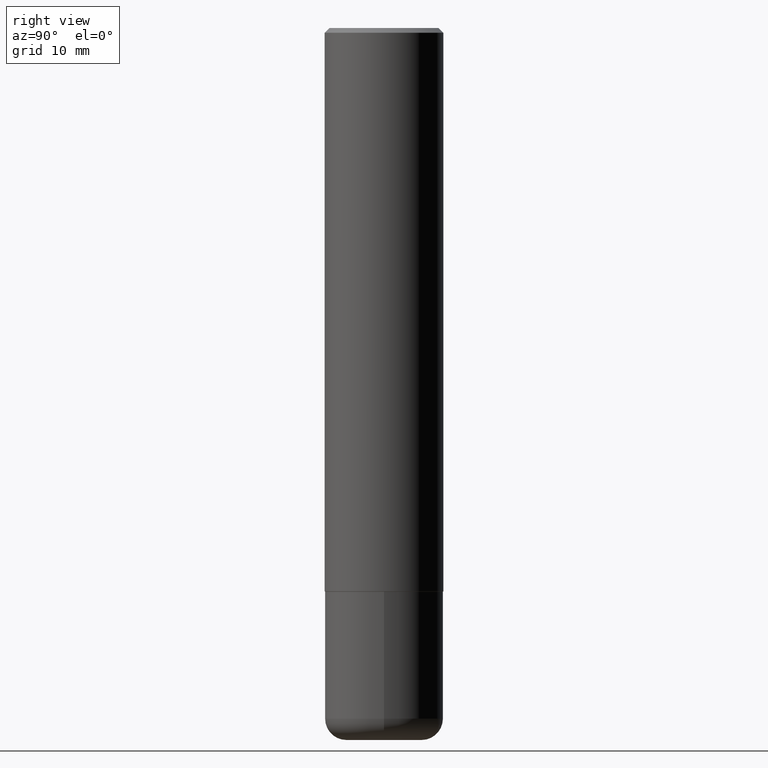
[diagram: clean part render]
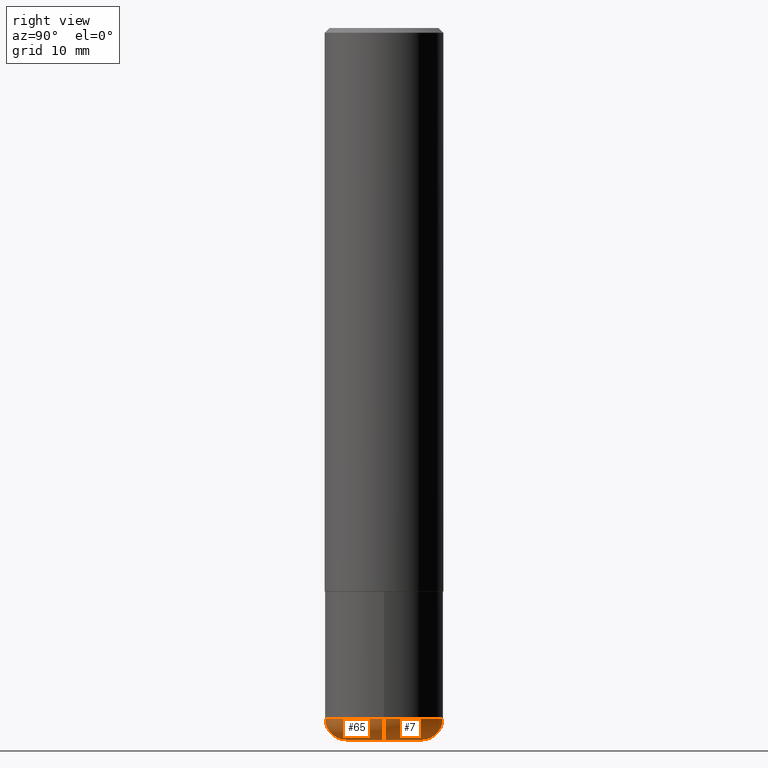
[diagram: same view with one multi-face feature highlighted, each face labeled with its STEP entity id]
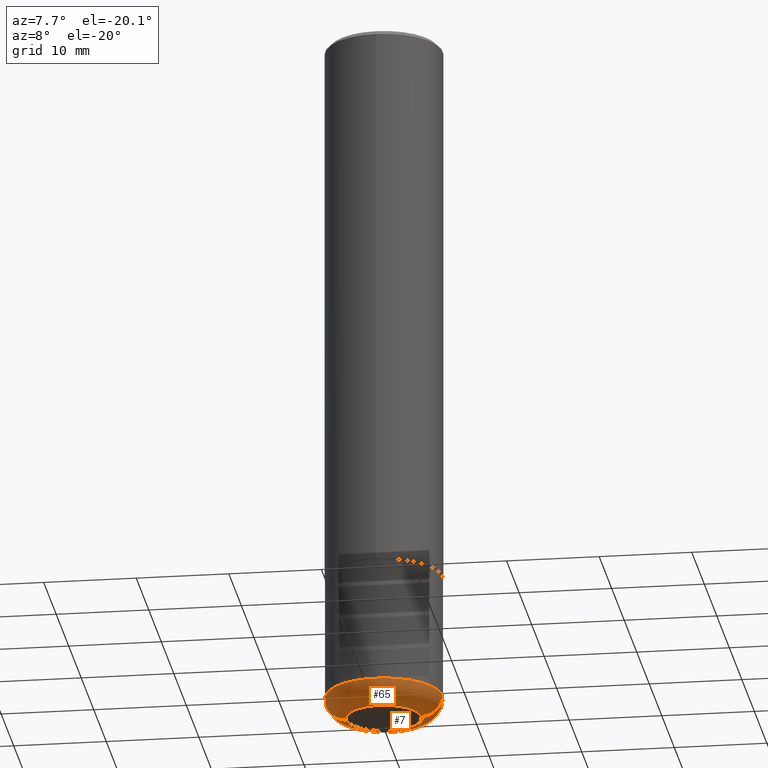
[diagram: same view with one multi-face feature highlighted, each face labeled with its STEP entity id]
A machine part, right view. The highlighted faces form ONE feature: a constant-radius fillet chain: 2 tangent blend faces with common blend radius 2.286 mm. The faces share edges in the B-rep.
A second angle (auxiliary view) of the same feature is appended — it is thin or edge-on in the first view.
Their STEP definitions:
[1] entity #7 (Torus):
#1 = DIRECTION ( 'NONE',  ( 7.105427357601001859E-15, 1.000000000000000000, -3.491481338843145583E-15 ) ) ;
#7 = ADVANCED_FACE ( 'NONE', ( #116 ), #308, .T. ) ;
#14 = CIRCLE ( 'NONE', #397, 0.08999999999999964972 ) ;
#15 = DIRECTION ( 'NONE',  ( -2.445468806185136597E-29, 3.491481338843145583E-15, 1.000000000000000000 ) ) ;
#21 = DIRECTION ( 'NONE',  ( 1.000000000000000000, -6.982962677686269077E-15, 0.000000000000000000 ) ) ;
#30 = DIRECTION ( 'NONE',  ( -6.982962677686266711E-15, -1.000000000000000000, 3.491481338843145583E-15 ) ) ;
#33 = DIRECTION ( 'NONE',  ( -1.000000000000000000, 7.105427357601006592E-15, 0.000000000000000000 ) ) ;
#68 = CARTESIAN_POINT ( 'NONE',  ( 0.1600000000000000033, -1.127748472446335797E-14, -2.910000000000000586 ) ) ;
#74 = CARTESIAN_POINT ( 'NONE',  ( -0.2499999999999998612, -8.383853856633305780E-15, -2.910000000000000586 ) ) ;
#97 = DIRECTION ( 'NONE',  ( 1.000000000000000000, -6.982962677686271444E-15, 0.000000000000000000 ) ) ;
#113 = CARTESIAN_POINT ( 'NONE',  ( 0.2499999999999998612, -1.190595136545512292E-14, -2.910000000000000586 ) ) ;
#116 = FACE_OUTER_BOUND ( 'NONE', #236, .T. ) ;
#122 = DIRECTION ( 'NONE',  ( -2.445468806185136597E-29, 3.491481338843145583E-15, 1.000000000000000000 ) ) ;
#150 = CIRCLE ( 'NONE', #340, 0.1600000000000000033 ) ;
#153 = EDGE_CURVE ( 'NONE', #392, #381, #226, .T. ) ;
#159 = DIRECTION ( 'NONE',  ( 1.000000000000000000, -6.982962677686273810E-15, 0.000000000000000000 ) ) ;
#168 = CARTESIAN_POINT ( 'NONE',  ( 0.1600000000000000033, -1.159171804495923808E-14, -2.999999999999999556 ) ) ;
#184 = CARTESIAN_POINT ( 'NONE',  ( 7.116314225998749245E-29, -1.016021069603355467E-14, -2.910000000000000586 ) ) ;
#194 = AXIS2_PLACEMENT_3D ( 'NONE', #300, #15, #267 ) ;
#209 = VERTEX_POINT ( 'NONE', #113 ) ;
#219 = CIRCLE ( 'NONE', #375, 0.2500000000000000555 ) ;
#220 = ORIENTED_EDGE ( 'NONE', *, *, #153, .T. ) ;
#226 = CIRCLE ( 'NONE', #374, 0.08999999999999964972 ) ;
#236 = EDGE_LOOP ( 'NONE', ( #416, #220, #289, #384 ) ) ;
#255 = EDGE_CURVE ( 'NONE', #389, #392, #150, .T. ) ;
#267 = DIRECTION ( 'NONE',  ( 1.000000000000000000, -6.982962677686265133E-15, 4.883557194083112340E-29 ) ) ;
#288 = CARTESIAN_POINT ( 'NONE',  ( -0.1600000000000000033, -9.023342318817394938E-15, -2.910000000000000586 ) ) ;
#289 = ORIENTED_EDGE ( 'NONE', *, *, #346, .F. ) ;
#290 = EDGE_CURVE ( 'NONE', #389, #209, #14, .T. ) ;
#292 = CARTESIAN_POINT ( 'NONE',  ( -0.1600000000000000033, -8.860714747973291991E-15, -2.999999999999999556 ) ) ;
#300 = CARTESIAN_POINT ( 'NONE',  ( 7.116314225998749245E-29, -1.016021069603355467E-14, -2.910000000000000586 ) ) ;
#304 = CARTESIAN_POINT ( 'NONE',  ( 7.336406418555408669E-29, -1.047444401652943478E-14, -2.999999999999999556 ) ) ;
#307 = DIRECTION ( 'NONE',  ( -2.445468806185136597E-29, 3.491481338843145583E-15, 1.000000000000000000 ) ) ;
#308 = TOROIDAL_SURFACE ( 'NONE', #194, 0.1600000000000000033, 0.08999999999999967748 ) ;
#340 = AXIS2_PLACEMENT_3D ( 'NONE', #304, #122, #97 ) ;
#346 = EDGE_CURVE ( 'NONE', #209, #381, #219, .T. ) ;
#374 = AXIS2_PLACEMENT_3D ( 'NONE', #288, #1, #33 ) ;
#375 = AXIS2_PLACEMENT_3D ( 'NONE', #184, #307, #21 ) ;
#381 = VERTEX_POINT ( 'NONE', #74 ) ;
#384 = ORIENTED_EDGE ( 'NONE', *, *, #290, .F. ) ;
#389 = VERTEX_POINT ( 'NONE', #168 ) ;
#392 = VERTEX_POINT ( 'NONE', #292 ) ;
#397 = AXIS2_PLACEMENT_3D ( 'NONE', #68, #30, #159 ) ;
#416 = ORIENTED_EDGE ( 'NONE', *, *, #255, .T. ) ;
[2] entity #65 (Torus):
#1 = DIRECTION ( 'NONE',  ( 7.105427357601001859E-15, 1.000000000000000000, -3.491481338843145583E-15 ) ) ;
#14 = CIRCLE ( 'NONE', #397, 0.08999999999999964972 ) ;
#30 = DIRECTION ( 'NONE',  ( -6.982962677686266711E-15, -1.000000000000000000, 3.491481338843145583E-15 ) ) ;
#33 = DIRECTION ( 'NONE',  ( -1.000000000000000000, 7.105427357601006592E-15, 0.000000000000000000 ) ) ;
#35 = EDGE_CURVE ( 'NONE', #392, #389, #248, .T. ) ;
#57 = DIRECTION ( 'NONE',  ( 1.000000000000000000, -6.982962677686269077E-15, 0.000000000000000000 ) ) ;
#65 = ADVANCED_FACE ( 'NONE', ( #241 ), #118, .T. ) ;
#68 = CARTESIAN_POINT ( 'NONE',  ( 0.1600000000000000033, -1.127748472446335797E-14, -2.910000000000000586 ) ) ;
#74 = CARTESIAN_POINT ( 'NONE',  ( -0.2499999999999998612, -8.383853856633305780E-15, -2.910000000000000586 ) ) ;
#104 = AXIS2_PLACEMENT_3D ( 'NONE', #376, #306, #372 ) ;
#113 = CARTESIAN_POINT ( 'NONE',  ( 0.2499999999999998612, -1.190595136545512292E-14, -2.910000000000000586 ) ) ;
#118 = TOROIDAL_SURFACE ( 'NONE', #104, 0.1600000000000000033, 0.08999999999999967748 ) ;
#120 = CARTESIAN_POINT ( 'NONE',  ( 7.336406418555408669E-29, -1.047444401652943478E-14, -2.999999999999999556 ) ) ;
#153 = EDGE_CURVE ( 'NONE', #392, #381, #226, .T. ) ;
#155 = EDGE_LOOP ( 'NONE', ( #237, #250, #206, #310 ) ) ;
#159 = DIRECTION ( 'NONE',  ( 1.000000000000000000, -6.982962677686273810E-15, 0.000000000000000000 ) ) ;
#168 = CARTESIAN_POINT ( 'NONE',  ( 0.1600000000000000033, -1.159171804495923808E-14, -2.999999999999999556 ) ) ;
#181 = CARTESIAN_POINT ( 'NONE',  ( 7.116314225998749245E-29, -1.016021069603355467E-14, -2.910000000000000586 ) ) ;
#206 = ORIENTED_EDGE ( 'NONE', *, *, #290, .T. ) ;
#209 = VERTEX_POINT ( 'NONE', #113 ) ;
#226 = CIRCLE ( 'NONE', #374, 0.08999999999999964972 ) ;
#237 = ORIENTED_EDGE ( 'NONE', *, *, #153, .F. ) ;
#241 = FACE_OUTER_BOUND ( 'NONE', #155, .T. ) ;
#248 = CIRCLE ( 'NONE', #257, 0.1600000000000000033 ) ;
#250 = ORIENTED_EDGE ( 'NONE', *, *, #35, .T. ) ;
#257 = AXIS2_PLACEMENT_3D ( 'NONE', #120, #269, #341 ) ;
#269 = DIRECTION ( 'NONE',  ( -2.445468806185136597E-29, 3.491481338843145583E-15, 1.000000000000000000 ) ) ;
#288 = CARTESIAN_POINT ( 'NONE',  ( -0.1600000000000000033, -9.023342318817394938E-15, -2.910000000000000586 ) ) ;
#290 = EDGE_CURVE ( 'NONE', #389, #209, #14, .T. ) ;
#292 = CARTESIAN_POINT ( 'NONE',  ( -0.1600000000000000033, -8.860714747973291991E-15, -2.999999999999999556 ) ) ;
#296 = EDGE_CURVE ( 'NONE', #381, #209, #408, .T. ) ;
#306 = DIRECTION ( 'NONE',  ( -2.445468806185136597E-29, 3.491481338843145583E-15, 1.000000000000000000 ) ) ;
#310 = ORIENTED_EDGE ( 'NONE', *, *, #296, .F. ) ;
#312 = DIRECTION ( 'NONE',  ( -2.445468806185136597E-29, 3.491481338843145583E-15, 1.000000000000000000 ) ) ;
#341 = DIRECTION ( 'NONE',  ( 1.000000000000000000, -6.982962677686271444E-15, 0.000000000000000000 ) ) ;
#350 = AXIS2_PLACEMENT_3D ( 'NONE', #181, #312, #57 ) ;
#372 = DIRECTION ( 'NONE',  ( 1.000000000000000000, -6.982962677686265133E-15, 4.883557194083112340E-29 ) ) ;
#374 = AXIS2_PLACEMENT_3D ( 'NONE', #288, #1, #33 ) ;
#376 = CARTESIAN_POINT ( 'NONE',  ( 7.116314225998749245E-29, -1.016021069603355467E-14, -2.910000000000000586 ) ) ;
#381 = VERTEX_POINT ( 'NONE', #74 ) ;
#389 = VERTEX_POINT ( 'NONE', #168 ) ;
#392 = VERTEX_POINT ( 'NONE', #292 ) ;
#397 = AXIS2_PLACEMENT_3D ( 'NONE', #68, #30, #159 ) ;
#408 = CIRCLE ( 'NONE', #350, 0.2500000000000000555 ) ;